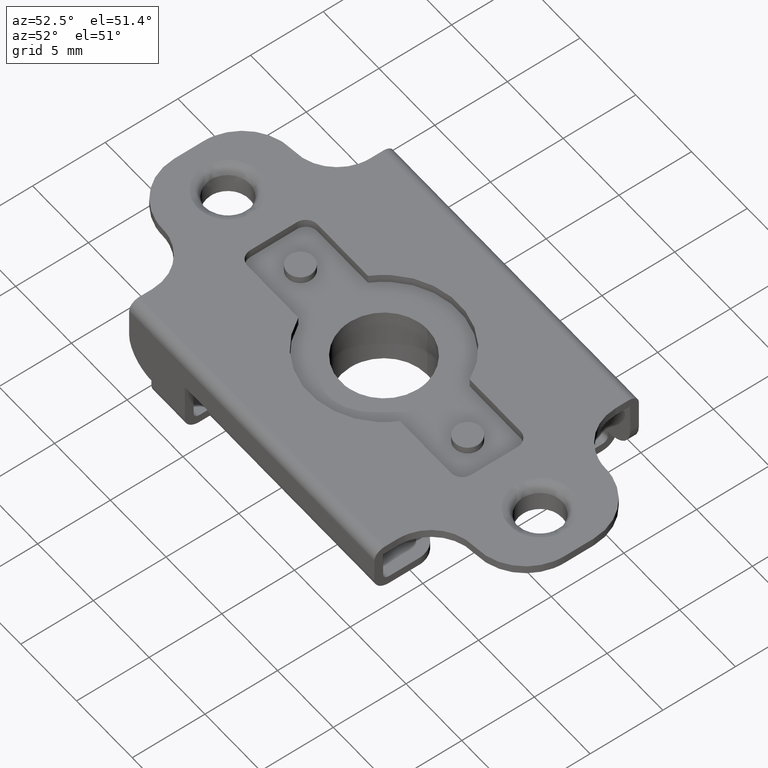
[diagram: clean part render]
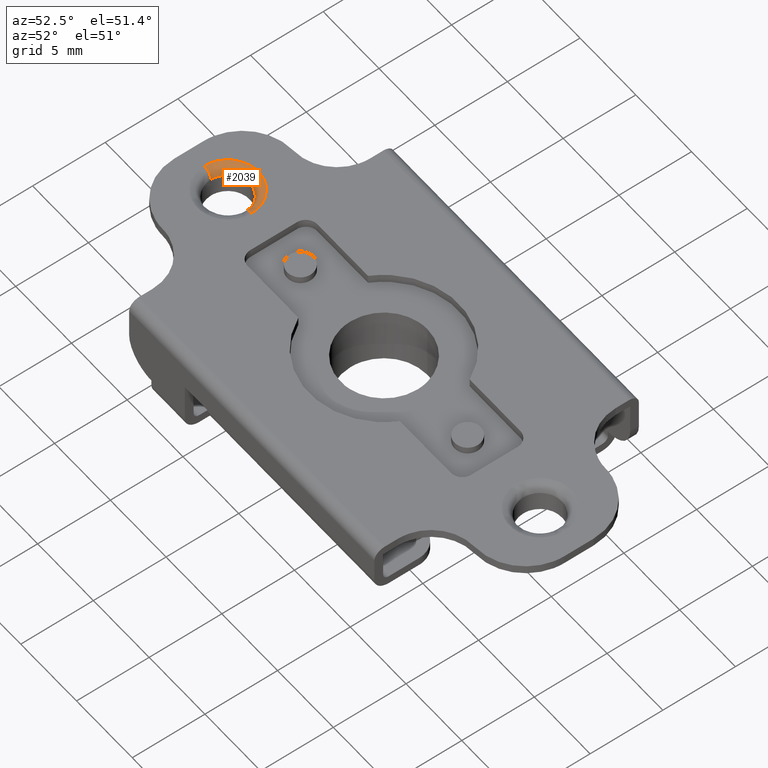
[diagram: same view with one face highlighted and labeled with its STEP entity id]
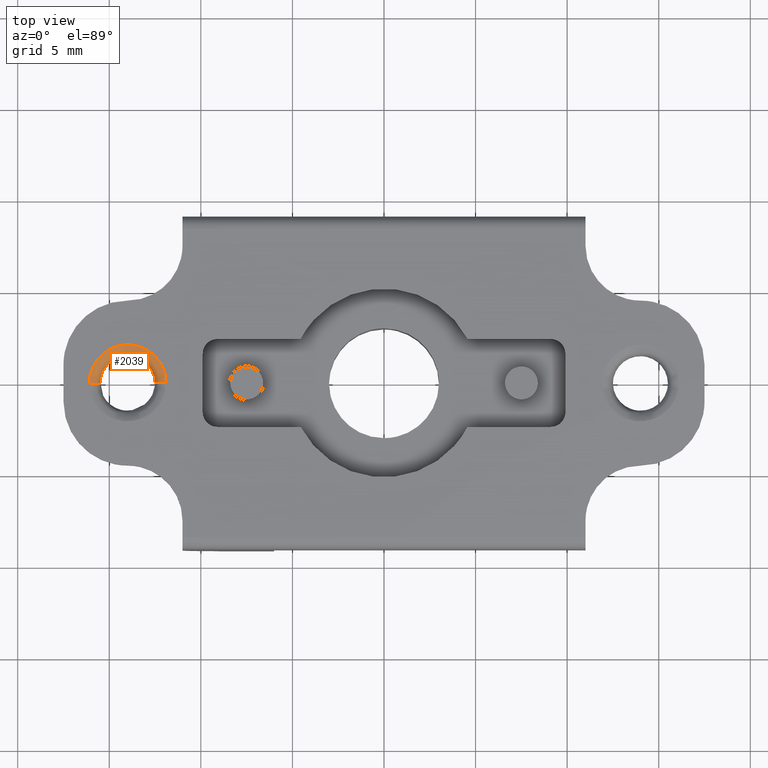
[diagram: same view with one face highlighted and labeled with its STEP entity id]
A machine part, auxiliary view. The second image highlights one B-rep face of the part: STEP entity #2039.
A second angle (top view) of the same face is appended — the face is thin or edge-on in the first view.
In plain terms, the highlighted face is a freeform B-spline surface patch.
Its self-contained STEP definition (entity closure, byte-faithful):
#1531=CARTESIAN_POINT('',(-12.500118433679820,0.018849059823860,-0.599997192336804));
#1532=VERTEX_POINT('',#1531);
#1548=CARTESIAN_POINT('',(-13.908665842688050,1.492821729088268,-0.599998501825519));
#1549=VERTEX_POINT('',#1548);
#1550=CARTESIAN_POINT('',(-12.500118433679827,0.018849059823860,-0.599997192336804));
#1551=CARTESIAN_POINT('',(-12.517514367028863,1.414770417198757,-0.599997200531349));
#1552=CARTESIAN_POINT('',(-13.908665842688048,1.492821729088268,-0.599998501825519));
#1560=(BOUNDED_CURVE()B_SPLINE_CURVE(2,(#1550,#1551,#1552),.UNSPECIFIED.,.F.,.U.)B_SPLINE_CURVE_WITH_KNOTS((3,3),(0.502215704078115,0.739394363860685),.UNSPECIFIED.)CURVE()GEOMETRIC_REPRESENTATION_ITEM()RATIONAL_B_SPLINE_CURVE((0.994854295644373,0.721907669738686,0.976203672366463))REPRESENTATION_ITEM(''));
#1561=EDGE_CURVE('',#1532,#1549,#1560,.T.);
#1654=CARTESIAN_POINT('',(-15.499881566304420,-0.018849059825029,-0.599999999281721));
#1655=VERTEX_POINT('',#1654);
#1673=CARTESIAN_POINT('',(-13.908665842688048,1.492821729088268,-0.599998501825519));
#1674=CARTESIAN_POINT('',(-13.954145488688429,1.495238835591177,-0.599998544360704));
#1675=CARTESIAN_POINT('',(-13.999709340151661,1.494886068382526,-0.599998586990737));
#1676=CARTESIAN_POINT('',(-15.499769500721809,1.483272211812910,-0.599999990463264));
#1677=CARTESIAN_POINT('',(-15.499881566304420,-0.018849059825029,-0.599999999281721));
#1685=(BOUNDED_CURVE()B_SPLINE_CURVE(2,(#1673,#1674,#1675,#1676,#1677),.UNSPECIFIED.,.F.,.U.)B_SPLINE_CURVE_WITH_KNOTS((3,2,3),(0.739394363860685,0.750000000000000,1.0),.UNSPECIFIED.)CURVE()GEOMETRIC_REPRESENTATION_ITEM()RATIONAL_B_SPLINE_CURVE((0.976203672366463,0.987574724374367,1.0,0.707106781186548,1.0))REPRESENTATION_ITEM(''));
#1686=EDGE_CURVE('',#1549,#1655,#1685,.T.);
#1924=CARTESIAN_POINT('',(-11.900165807320370,0.026388683742711,-2.258391E-014));
#1925=VERTEX_POINT('',#1924);
#1926=CARTESIAN_POINT('',(-12.500118433679825,0.018849059823860,-0.599997192336804));
#1927=CARTESIAN_POINT('',(-12.500115626254628,0.018849095100306,-1.498624E-010));
#1928=CARTESIAN_POINT('',(-11.900165807320374,0.026388683742711,-2.258391E-014));
#1936=(BOUNDED_CURVE()B_SPLINE_CURVE(2,(#1926,#1927,#1928),.UNSPECIFIED.,.F.,.U.)B_SPLINE_CURVE_WITH_KNOTS((3,3),(-1.725129844544284,-0.274865356974268),.UNSPECIFIED.)CURVE()GEOMETRIC_REPRESENTATION_ITEM()RATIONAL_B_SPLINE_CURVE((0.883340437489790,0.624618080257732,0.883342149561691))REPRESENTATION_ITEM(''));
#1937=EDGE_CURVE('',#1532,#1925,#1936,.T.);
#1941=CARTESIAN_POINT('',(-16.099834192789071,-0.026388683754568,-2.257606E-014));
#1942=VERTEX_POINT('',#1941);
#1943=CARTESIAN_POINT('',(-15.499881566304422,-0.018849059825029,-0.599999999281721));
#1944=CARTESIAN_POINT('',(-15.499881567022692,-0.018849059834055,-3.769312E-011));
#1945=CARTESIAN_POINT('',(-16.099834192789061,-0.026388683754567,-4.515182E-014));
#1953=(BOUNDED_CURVE()B_SPLINE_CURVE(2,(#1943,#1944,#1945),.UNSPECIFIED.,.F.,.U.)B_SPLINE_CURVE_WITH_KNOTS((3,3),(-1.725134642054085,-0.274865356782532),.UNSPECIFIED.)CURVE()GEOMETRIC_REPRESENTATION_ITEM()RATIONAL_B_SPLINE_CURVE((0.883342149215011,0.624617224358084,0.883342149630101))REPRESENTATION_ITEM(''));
#1954=EDGE_CURVE('',#1655,#1942,#1953,.T.);
#1982=CARTESIAN_POINT('',(-15.501389364923039,-0.060763117830877,-0.641721904100382));
#1983=CARTESIAN_POINT('',(-15.501351694643773,-0.039902148776926,-0.641721946420229));
#1984=CARTESIAN_POINT('',(-15.502444663261416,1.471150663653137,-0.641721233090384));
#1985=CARTESIAN_POINT('',(-14.017276473553643,1.496466264908634,-0.641726063751134));
#1986=CARTESIAN_POINT('',(-12.518467695746608,1.523457853757896,-0.641730871024254));
#1987=CARTESIAN_POINT('',(-12.498386816754646,-0.002247580303641,-0.641722020754271));
#1988=CARTESIAN_POINT('',(-12.498110525289274,-0.023075739328811,-0.641721842561719));
#1989=CARTESIAN_POINT('',(-15.453262450507394,-0.058818738735524,0.046511122656622));
#1990=CARTESIAN_POINT('',(-15.453314816512405,-0.038633996052794,0.046513425893583));
#1991=CARTESIAN_POINT('',(-15.458333511177878,1.424598803301912,0.046576139806443));
#1992=CARTESIAN_POINT('',(-14.029927381337233,1.445994697090666,0.046609228687627));
#1993=CARTESIAN_POINT('',(-12.563369898622932,1.471022849411420,0.046568032646571));
#1994=CARTESIAN_POINT('',(-12.546378615340462,-0.002166030422015,0.046514585747092));
#1995=CARTESIAN_POINT('',(-12.546100498170144,-0.022362641790686,0.046514734292483));
#1996=CARTESIAN_POINT('',(-16.140908738525027,-0.086692339781561,-0.001461098648479));
#1997=CARTESIAN_POINT('',(-16.141182581853091,-0.056985110354461,-0.001457210357626));
#1998=CARTESIAN_POINT('',(-16.168914196040422,2.115243271561941,-0.001018974026532));
#1999=CARTESIAN_POINT('',(-14.026397897711460,2.142168063089569,-0.001303838167270));
#2000=CARTESIAN_POINT('',(-11.885485535310258,2.168536524478410,-0.001544636849363));
#2001=CARTESIAN_POINT('',(-11.858067718249615,-0.003200957596610,-0.001451676625632));
#2002=CARTESIAN_POINT('',(-11.857678763328815,-0.032972445700600,-0.001452519532301));
#2010=(BOUNDED_SURFACE()B_SPLINE_SURFACE(2,2,((#1982,#1989,#1996),(#1983,#1990,#1997),(#1984,#1991,#1998),(#1985,#1992,#1999),(#1986,#1993,#2000),(#1987,#1994,#2001),(#1988,#1995,#2002)),.UNSPECIFIED.,.F.,.F.,.U.)B_SPLINE_SURFACE_WITH_KNOTS((3,1,2,1,3),(3,3),(0.0,0.070970433294812,3.619492098029174,7.168013762763536,7.238984196070832),(0.000000154274888,1.093630245280080),.UNSPECIFIED.)GEOMETRIC_REPRESENTATION_ITEM()RATIONAL_B_SPLINE_SURFACE(((0.921146640063161,0.604481770364988,0.921142252784720),(0.915813173423467,0.600981802806811,0.915808811547500),(0.643806374799545,0.422483457340093,0.643803308449732),(0.910479706783773,0.597481835248634,0.910475370310280),(0.643806374799545,0.422483457340093,0.643803308449732),(0.915813173424405,0.600981802807426,0.915808811548438),(0.921146640065037,0.604481770366219,0.921142252786597)))REPRESENTATION_ITEM('')SURFACE());
#2011=ORIENTED_EDGE('',*,*,#1937,.T.);
#2012=CARTESIAN_POINT('',(-16.099834192789071,-0.026388683754568,-2.257606E-014));
#2013=CARTESIAN_POINT('',(-16.099907945052440,0.170405084779382,-2.257606E-014));
#2014=CARTESIAN_POINT('',(-16.053799699817130,0.495465014313855,-2.257615E-014));
#2015=CARTESIAN_POINT('',(-15.904046738234911,0.879708294596422,-2.257643E-014));
#2016=CARTESIAN_POINT('',(-15.728446952251691,1.184140859871548,-2.257676E-014));
#2017=CARTESIAN_POINT('',(-15.463407200454981,1.511541290536469,-2.257726E-014));
#2018=CARTESIAN_POINT('',(-15.113738442594221,1.779595030487846,-2.257792E-014));
#2019=CARTESIAN_POINT('',(-14.718205373934451,1.966643683191900,-2.257866E-014));
#2020=CARTESIAN_POINT('',(-14.329023737626629,2.075157183736595,-2.257939E-014));
#2021=CARTESIAN_POINT('',(-13.890484111414510,2.100885121873582,-2.258021E-014));
#2022=CARTESIAN_POINT('',(-13.499798136896279,2.039576863857509,-2.258094E-014));
#2023=CARTESIAN_POINT('',(-13.158056873324350,1.925809625258164,-2.258158E-014));
#2024=CARTESIAN_POINT('',(-12.868642722397910,1.774634933917979,-2.258212E-014));
#2025=CARTESIAN_POINT('',(-12.547060947973170,1.531322036854046,-2.258272E-014));
#2026=CARTESIAN_POINT('',(-12.295379974303550,1.247522948750507,-2.258319E-014));
#2027=CARTESIAN_POINT('',(-12.070497188165019,0.862185718322424,-2.258360E-014));
#2028=CARTESIAN_POINT('',(-11.935956034613969,0.470884712569517,-2.258385E-014));
#2029=CARTESIAN_POINT('',(-11.901875528727491,0.163266396589707,-2.258391E-014));
#2030=CARTESIAN_POINT('',(-11.900165807320370,0.026388683742711,-2.258391E-014));
#2031=B_SPLINE_CURVE_WITH_KNOTS('',3,(#2012,#2013,#2014,#2015,#2016,#2017,#2018,#2019,#2020,#2021,#2022,#2023,#2024,#2025,#2026,#2027,#2028,#2029,#2030),.UNSPECIFIED.,.F.,.U.,(4,1,1,1,1,1,1,1,1,1,1,1,1,1,1,1,4),(0.000000036461643,0.590347319981374,0.975383744489259,1.232067873155718,1.642762167594841,2.233141008870748,2.541153911667584,2.951844044569309,3.439517592283175,3.850203141600839,4.132556519816491,4.517589738609079,4.825609356166648,5.338979313591608,5.647004644798384,6.160372208487489,6.571044933087150),.UNSPECIFIED.);
#2032=EDGE_CURVE('',#1942,#1925,#2031,.T.);
#2033=ORIENTED_EDGE('',*,*,#2032,.F.);
#2034=ORIENTED_EDGE('',*,*,#1954,.F.);
#2035=ORIENTED_EDGE('',*,*,#1686,.F.);
#2036=ORIENTED_EDGE('',*,*,#1561,.F.);
#2037=EDGE_LOOP('',(#2011,#2033,#2034,#2035,#2036));
#2038=FACE_OUTER_BOUND('',#2037,.T.);
#2039=ADVANCED_FACE('',(#2038),#2010,.T.);